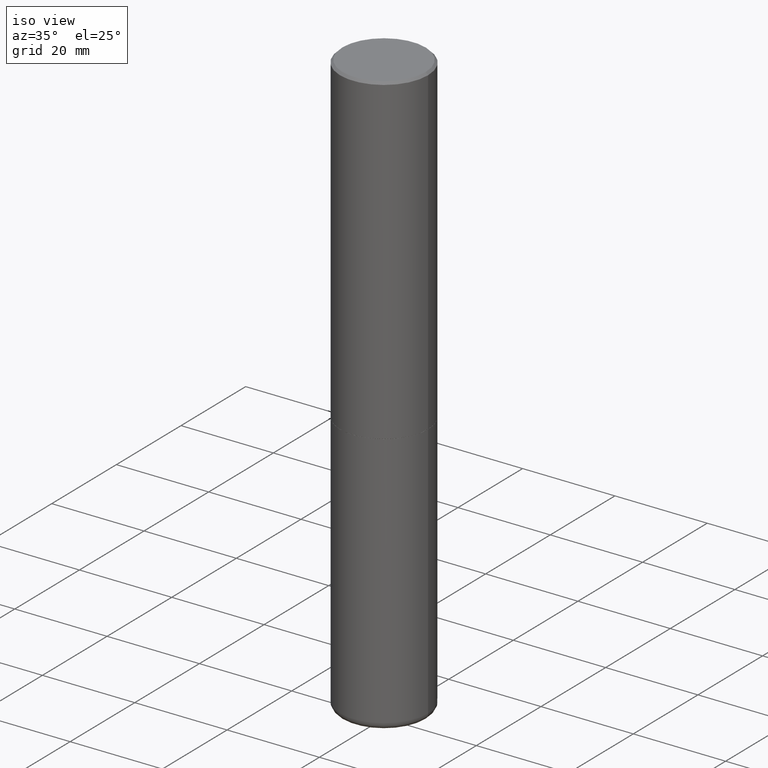
[diagram: clean part render]
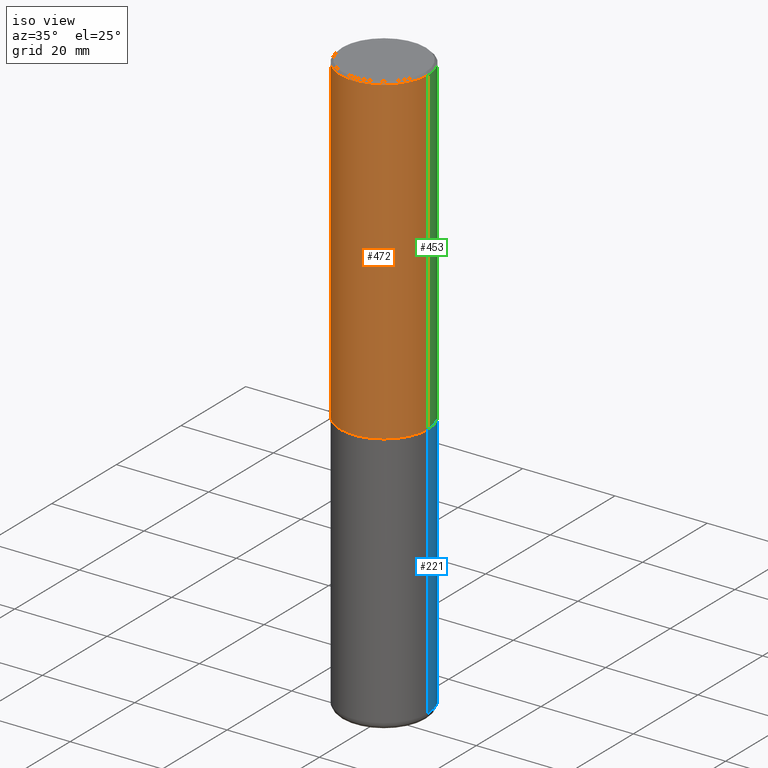
[diagram: same view with three faces highlighted in distinct colors, each labeled with its STEP entity id]
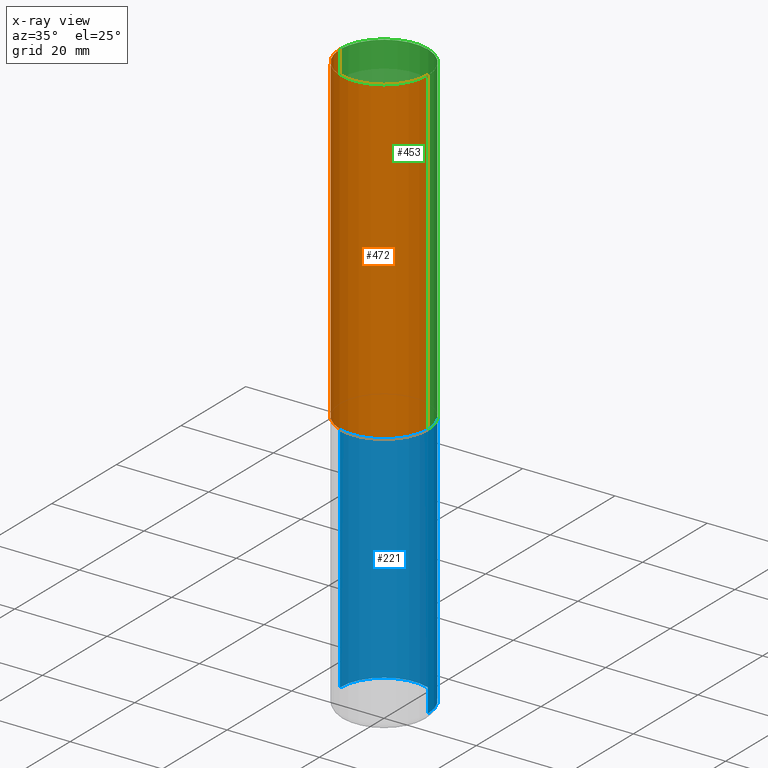
[diagram: x-ray of the same camera — body ghosted, the three highlighted faces saturated]
A machine part, iso view with three faces highlighted in distinct colors.
The next image is the same camera in x-ray (body ghosted, the three faces saturated) — at least one of them is partly hidden behind the body in this view.
Their STEP definitions:

[orange] entity #472 — the highlighted cylindrical surface (partial cylindrical patch) has radius 9.525 mm, axis along (-0, 0, 1).
#7 = CARTESIAN_POINT ( 'NONE',  ( 4.890937612370324831E-31, -6.982962677686364332E-17, -0.02000000000000020858 ) ) ;
#9 = CARTESIAN_POINT ( 'NONE',  ( 0.3750000000000000555, -1.221669320461216002E-14, -2.749000000000000554 ) ) ;
#24 = CARTESIAN_POINT ( 'NONE',  ( 0.000000000000000000, 0.000000000000000000, 0.000000000000000000 ) ) ;
#30 = ORIENTED_EDGE ( 'NONE', *, *, #170, .T. ) ;
#34 = CARTESIAN_POINT ( 'NONE',  ( 0.3749999999999995559, -2.618611004132346467E-15, 1.828566290923473680E-29 ) ) ;
#49 = ORIENTED_EDGE ( 'NONE', *, *, #355, .T. ) ;
#73 = DIRECTION ( 'NONE',  ( -2.445468806185136877E-29, 3.491481338843145188E-15, 1.000000000000000000 ) ) ;
#77 = DIRECTION ( 'NONE',  ( -2.445468806185136597E-29, 3.491481338843145583E-15, 1.000000000000000000 ) ) ;
#88 = VERTEX_POINT ( 'NONE', #260 ) ;
#92 = FACE_OUTER_BOUND ( 'NONE', #251, .T. ) ;
#97 = DIRECTION ( 'NONE',  ( 1.000000000000000000, -6.982962677686265133E-15, 4.876176775795935793E-29 ) ) ;
#108 = CARTESIAN_POINT ( 'NONE',  ( -0.3749999999999991673, 2.548781377355480407E-15, -0.02000000000000020858 ) ) ;
#136 = DIRECTION ( 'NONE',  ( -2.445468806185136597E-29, 3.491481338843145583E-15, 1.000000000000000000 ) ) ;
#139 = EDGE_CURVE ( 'NONE', #394, #349, #329, .T. ) ;
#140 = CARTESIAN_POINT ( 'NONE',  ( -0.3749999999999995559, 2.664535259100372542E-15, -1.844600658845587356E-29 ) ) ;
#143 = DIRECTION ( 'NONE',  ( 1.000000000000000000, -6.982962677686266711E-15, 0.000000000000000000 ) ) ;
#170 = EDGE_CURVE ( 'NONE', #394, #208, #421, .T. ) ;
#183 = CARTESIAN_POINT ( 'NONE',  ( -0.3750000000000000555, -2.169420654527954251E-15, -2.749000000000000554 ) ) ;
#187 = LINE ( 'NONE', #34, #284 ) ;
#208 = VERTEX_POINT ( 'NONE', #9 ) ;
#219 = AXIS2_PLACEMENT_3D ( 'NONE', #7, #77, #237 ) ;
#234 = CARTESIAN_POINT ( 'NONE',  ( 6.722593748202942280E-29, -9.598082200479810007E-15, -2.749000000000000554 ) ) ;
#237 = DIRECTION ( 'NONE',  ( 1.000000000000000000, -6.982962677686266711E-15, 0.000000000000000000 ) ) ;
#249 = CYLINDRICAL_SURFACE ( 'NONE', #327, 0.3749999999999995559 ) ;
#251 = EDGE_LOOP ( 'NONE', ( #418, #30, #49, #465 ) ) ;
#260 = CARTESIAN_POINT ( 'NONE',  ( 0.3749999999999991673, -2.642516375941182112E-15, -0.02000000000000020858 ) ) ;
#284 = VECTOR ( 'NONE', #73, 39.37007874015748143 ) ;
#291 = DIRECTION ( 'NONE',  ( -2.445468806185136877E-29, 3.491481338843145188E-15, 1.000000000000000000 ) ) ;
#327 = AXIS2_PLACEMENT_3D ( 'NONE', #24, #136, #97 ) ;
#329 = LINE ( 'NONE', #140, #392 ) ;
#349 = VERTEX_POINT ( 'NONE', #108 ) ;
#355 = EDGE_CURVE ( 'NONE', #208, #88, #187, .T. ) ;
#392 = VECTOR ( 'NONE', #291, 39.37007874015748143 ) ;
#394 = VERTEX_POINT ( 'NONE', #183 ) ;
#418 = ORIENTED_EDGE ( 'NONE', *, *, #139, .F. ) ;
#421 = CIRCLE ( 'NONE', #486, 0.3750000000000000555 ) ;
#433 = CIRCLE ( 'NONE', #219, 0.3749999999999991673 ) ;
#443 = EDGE_CURVE ( 'NONE', #349, #88, #433, .T. ) ;
#465 = ORIENTED_EDGE ( 'NONE', *, *, #443, .F. ) ;
#472 = ADVANCED_FACE ( 'NONE', ( #92 ), #249, .T. ) ;
#483 = DIRECTION ( 'NONE',  ( -2.445468806185136597E-29, 3.491481338843145583E-15, 1.000000000000000000 ) ) ;
#486 = AXIS2_PLACEMENT_3D ( 'NONE', #234, #483, #143 ) ;

[blue] entity #221 — the highlighted cylindrical surface (partial cylindrical patch) has radius 9.525 mm, axis along (-0, 0, 1).
#12 = DIRECTION ( 'NONE',  ( 1.000000000000000000, -6.982962677686263555E-15, 0.000000000000000000 ) ) ;
#20 = ORIENTED_EDGE ( 'NONE', *, *, #145, .T. ) ;
#35 = CARTESIAN_POINT ( 'NONE',  ( 0.3750000000000000555, -1.222018468595100145E-14, -2.750000000000000000 ) ) ;
#37 = AXIS2_PLACEMENT_3D ( 'NONE', #463, #430, #156 ) ;
#39 = CARTESIAN_POINT ( 'NONE',  ( 1.208062148951210544E-28, -1.724792579057979243E-14, -4.940002284616149986 ) ) ;
#51 = VERTEX_POINT ( 'NONE', #35 ) ;
#53 = CARTESIAN_POINT ( 'NONE',  ( -0.3750000000000000555, -1.076021447709884624E-14, -2.750000000000000000 ) ) ;
#59 = EDGE_CURVE ( 'NONE', #304, #51, #98, .T. ) ;
#63 = AXIS2_PLACEMENT_3D ( 'NONE', #66, #226, #491 ) ;
#66 = CARTESIAN_POINT ( 'NONE',  ( 6.725039217009124520E-29, -9.601573681818649859E-15, -2.750000000000000000 ) ) ;
#74 = DIRECTION ( 'NONE',  ( -2.445468806185136597E-29, 3.491481338843145583E-15, 1.000000000000000000 ) ) ;
#98 = LINE ( 'NONE', #179, #265 ) ;
#101 = DIRECTION ( 'NONE',  ( -2.445468806185136877E-29, 3.491481338843145188E-15, 1.000000000000000000 ) ) ;
#142 = CARTESIAN_POINT ( 'NONE',  ( -0.3749999999999999445, 2.664535259100375303E-15, -1.844600658845589318E-29 ) ) ;
#145 = EDGE_CURVE ( 'NONE', #428, #162, #482, .T. ) ;
#156 = DIRECTION ( 'NONE',  ( 1.000000000000000000, -6.982962677686266711E-15, 4.876176775795935793E-29 ) ) ;
#158 = EDGE_CURVE ( 'NONE', #304, #428, #212, .T. ) ;
#162 = VERTEX_POINT ( 'NONE', #53 ) ;
#179 = CARTESIAN_POINT ( 'NONE',  ( 0.3749999999999999445, -2.618611004132349622E-15, 1.828566290923475642E-29 ) ) ;
#194 = FACE_OUTER_BOUND ( 'NONE', #248, .T. ) ;
#195 = CIRCLE ( 'NONE', #63, 0.3750000000000000555 ) ;
#203 = ORIENTED_EDGE ( 'NONE', *, *, #406, .F. ) ;
#212 = CIRCLE ( 'NONE', #356, 0.3749999999999999445 ) ;
#221 = ADVANCED_FACE ( 'NONE', ( #194 ), #379, .T. ) ;
#226 = DIRECTION ( 'NONE',  ( -2.445468806185136597E-29, 3.491481338843145583E-15, 1.000000000000000000 ) ) ;
#248 = EDGE_LOOP ( 'NONE', ( #317, #20, #203, #383 ) ) ;
#265 = VECTOR ( 'NONE', #449, 39.37007874015748143 ) ;
#274 = CARTESIAN_POINT ( 'NONE',  ( 0.3749999999999999445, -1.986653679471214244E-14, -4.940002284616149986 ) ) ;
#304 = VERTEX_POINT ( 'NONE', #274 ) ;
#317 = ORIENTED_EDGE ( 'NONE', *, *, #158, .T. ) ;
#356 = AXIS2_PLACEMENT_3D ( 'NONE', #39, #74, #12 ) ;
#374 = CARTESIAN_POINT ( 'NONE',  ( -0.3749999999999999445, -1.076021447709884624E-14, -4.940002284616149986 ) ) ;
#379 = CYLINDRICAL_SURFACE ( 'NONE', #37, 0.3749999999999999445 ) ;
#383 = ORIENTED_EDGE ( 'NONE', *, *, #59, .F. ) ;
#406 = EDGE_CURVE ( 'NONE', #51, #162, #195, .T. ) ;
#428 = VERTEX_POINT ( 'NONE', #374 ) ;
#430 = DIRECTION ( 'NONE',  ( -2.445468806185136597E-29, 3.491481338843145583E-15, 1.000000000000000000 ) ) ;
#447 = VECTOR ( 'NONE', #101, 39.37007874015748143 ) ;
#449 = DIRECTION ( 'NONE',  ( -2.445468806185136877E-29, 3.491481338843145188E-15, 1.000000000000000000 ) ) ;
#463 = CARTESIAN_POINT ( 'NONE',  ( 0.000000000000000000, 0.000000000000000000, 0.000000000000000000 ) ) ;
#482 = LINE ( 'NONE', #142, #447 ) ;
#491 = DIRECTION ( 'NONE',  ( 1.000000000000000000, -6.982962677686266711E-15, 0.000000000000000000 ) ) ;

[green] entity #453 — the highlighted cylindrical surface (partial cylindrical patch) has radius 9.525 mm, axis along (-0, 0, 1).
#9 = CARTESIAN_POINT ( 'NONE',  ( 0.3750000000000000555, -1.221669320461216002E-14, -2.749000000000000554 ) ) ;
#10 = DIRECTION ( 'NONE',  ( 1.000000000000000000, -6.982962677686266711E-15, 0.000000000000000000 ) ) ;
#29 = AXIS2_PLACEMENT_3D ( 'NONE', #350, #240, #10 ) ;
#34 = CARTESIAN_POINT ( 'NONE',  ( 0.3749999999999995559, -2.618611004132346467E-15, 1.828566290923473680E-29 ) ) ;
#41 = EDGE_CURVE ( 'NONE', #208, #394, #438, .T. ) ;
#69 = CIRCLE ( 'NONE', #29, 0.3749999999999991673 ) ;
#73 = DIRECTION ( 'NONE',  ( -2.445468806185136877E-29, 3.491481338843145188E-15, 1.000000000000000000 ) ) ;
#88 = VERTEX_POINT ( 'NONE', #260 ) ;
#108 = CARTESIAN_POINT ( 'NONE',  ( -0.3749999999999991673, 2.548781377355480407E-15, -0.02000000000000020858 ) ) ;
#121 = ORIENTED_EDGE ( 'NONE', *, *, #288, .F. ) ;
#125 = DIRECTION ( 'NONE',  ( -2.445468806185136597E-29, 3.491481338843145583E-15, 1.000000000000000000 ) ) ;
#139 = EDGE_CURVE ( 'NONE', #394, #349, #329, .T. ) ;
#140 = CARTESIAN_POINT ( 'NONE',  ( -0.3749999999999995559, 2.664535259100372542E-15, -1.844600658845587356E-29 ) ) ;
#161 = CARTESIAN_POINT ( 'NONE',  ( 0.000000000000000000, 0.000000000000000000, 0.000000000000000000 ) ) ;
#183 = CARTESIAN_POINT ( 'NONE',  ( -0.3750000000000000555, -2.169420654527954251E-15, -2.749000000000000554 ) ) ;
#187 = LINE ( 'NONE', #34, #284 ) ;
#208 = VERTEX_POINT ( 'NONE', #9 ) ;
#216 = ORIENTED_EDGE ( 'NONE', *, *, #41, .T. ) ;
#240 = DIRECTION ( 'NONE',  ( -2.445468806185136597E-29, 3.491481338843145583E-15, 1.000000000000000000 ) ) ;
#258 = AXIS2_PLACEMENT_3D ( 'NONE', #161, #125, #397 ) ;
#260 = CARTESIAN_POINT ( 'NONE',  ( 0.3749999999999991673, -2.642516375941182112E-15, -0.02000000000000020858 ) ) ;
#284 = VECTOR ( 'NONE', #73, 39.37007874015748143 ) ;
#288 = EDGE_CURVE ( 'NONE', #88, #349, #69, .T. ) ;
#289 = ORIENTED_EDGE ( 'NONE', *, *, #139, .T. ) ;
#291 = DIRECTION ( 'NONE',  ( -2.445468806185136877E-29, 3.491481338843145188E-15, 1.000000000000000000 ) ) ;
#296 = CARTESIAN_POINT ( 'NONE',  ( 6.722593748202942280E-29, -9.598082200479810007E-15, -2.749000000000000554 ) ) ;
#329 = LINE ( 'NONE', #140, #392 ) ;
#346 = CYLINDRICAL_SURFACE ( 'NONE', #258, 0.3749999999999995559 ) ;
#349 = VERTEX_POINT ( 'NONE', #108 ) ;
#350 = CARTESIAN_POINT ( 'NONE',  ( 4.890937612370324831E-31, -6.982962677686364332E-17, -0.02000000000000020858 ) ) ;
#355 = EDGE_CURVE ( 'NONE', #208, #88, #187, .T. ) ;
#363 = DIRECTION ( 'NONE',  ( -2.445468806185136597E-29, 3.491481338843145583E-15, 1.000000000000000000 ) ) ;
#377 = AXIS2_PLACEMENT_3D ( 'NONE', #296, #363, #441 ) ;
#392 = VECTOR ( 'NONE', #291, 39.37007874015748143 ) ;
#394 = VERTEX_POINT ( 'NONE', #183 ) ;
#397 = DIRECTION ( 'NONE',  ( 1.000000000000000000, -6.982962677686265133E-15, 4.876176775795935793E-29 ) ) ;
#438 = CIRCLE ( 'NONE', #377, 0.3750000000000000555 ) ;
#441 = DIRECTION ( 'NONE',  ( 1.000000000000000000, -6.982962677686266711E-15, 0.000000000000000000 ) ) ;
#453 = ADVANCED_FACE ( 'NONE', ( #464 ), #346, .T. ) ;
#464 = FACE_OUTER_BOUND ( 'NONE', #467, .T. ) ;
#467 = EDGE_LOOP ( 'NONE', ( #216, #289, #121, #474 ) ) ;
#474 = ORIENTED_EDGE ( 'NONE', *, *, #355, .F. ) ;